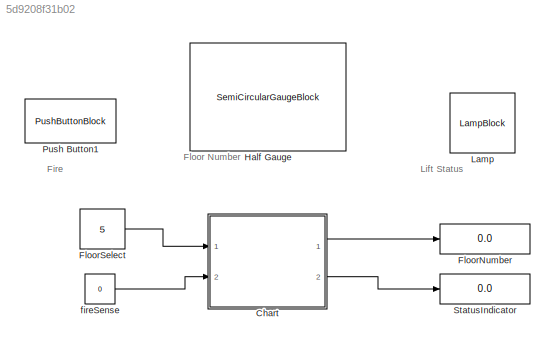
MODEL slx_5d9208f31b02
KIND model
CONFIG AbsTol = auto
CONFIG EnableMultiTasking = off
CONFIG FixedStep = auto
CONFIG MaxStep = auto
CONFIG MinStep = auto
CONFIG RelTol = 1e-3
CONFIG SampleTimeConstraint = Unconstrained
CONFIG SolverName = VariableStepAuto
CONFIG StartTime = 0.0
CONFIG StopTime = inf
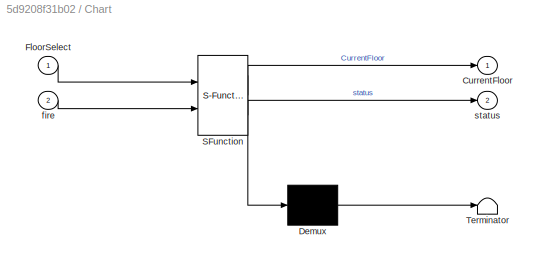
BLOCK [SubSystem] Chart
  ErrorFcn = Stateflow.Translate.translate
  PermitHierarchicalResolution = ExplicitOnly
  Ports = [2, 2]
  RequestExecContextInheritance = off
  SFBlockType = Chart
  TreatAsAtomicUnit = on
BLOCK [Demux] Chart/ Demux 
  Outputs = 1
  Ports = [1, 1]
BLOCK [S-Function] Chart/ SFunction 
  EnableBusSupport = on
  FunctionName = sf_sfun
  PortCounts = [2 3]
  Ports = [2, 3]
  SFcnIsStateOwnerBlock = off
  SFunctionDeploymentMode = off
  Tag = Stateflow S-Function 3
BLOCK [Terminator] Chart/ Terminator 
BLOCK [Outport] Chart/CurrentFloor
BLOCK [Inport] Chart/FloorSelect
BLOCK [Inport] Chart/fire
  Port = 2
BLOCK [Outport] Chart/status
  Port = 2
BLOCK [Display] FloorNumber
  Decimation = 1
  Ports = [1]
BLOCK [Constant] FloorSelect
  Value = 5
BLOCK [SemiCircularGaugeBlock] Half Gauge
  ScaleMax = 5
  TickInterval = 1
BLOCK [LampBlock] Lamp
BLOCK [PushButtonBlock] Push Button1
  ButtonText = Fire
BLOCK [Display] StatusIndicator
  Decimation = 1
  Ports = [1]
BLOCK [Constant] fireSense
  Value = 0
ANNOTATION (root): Fire
ANNOTATION (root): Floor Number
ANNOTATION (root): Lift Status
LINE Chart:1 -> FloorNumber:1
LINE Chart:2 -> StatusIndicator:1
LINE FloorSelect:1 -> Chart:1
LINE fireSense:1 -> Chart:2
CHART Chart states=12 transitions=29
  STATE_LABEL 'LiftOperation\nentry:\nstatus=0;'
  STATE_LABEL 'LiftFunctionOn'
  STATE_LABEL 'GroundFloor\nentry:\nstatus=1;\nduring:\nCurrentFloor=0;\nFloorCheck(CurrentFloor);\nexit:\nstatus=0;\n'
  STATE_LABEL 'FirstFloor\nentry:\nstatus=1;\nduring:\nCurrentFloor=1;\nFloorCheck(CurrentFloor);\nexit:\nstatus=0;\n'
  STATE_LABEL 'SecondFloor\nentry:\nstatus=1;\nduring:\nCurrentFloor=2;\nFloorCheck(CurrentFloor);\nexit:\nstatus=0;\nafter(1,sec);\n'
  STATE_LABEL 'ThirdFloor\nentry:\nstatus=1;\nduring:\nCurrentFloor=3;\nFloorCheck(CurrentFloor);\nexit:\nstatus=0;\nafter(1,sec);'
  STATE_LABEL 'FourthFloor\nentry:\nstatus=1\nduring:\nCurrentFloor=4;\nFloorCheck(CurrentFloor);\nexit:\nstatus=0;\n'
  STATE_LABEL 'FifthFloor\nentry:\nstatus=1;\nduring:\nCurrentFloor=5;\nFloorCheck(CurrentFloor);\nexit:\nstatus=0;\n'
  STATE_LABEL 'up'
  STATE_LABEL 'down'
  STATE_LABEL 'up'
  STATE_LABEL 'down'
  STATE_LABEL 'up'
  STATE_LABEL 'down'
  STATE_LABEL 'up'
  STATE_LABEL 'down'
  STATE_LABEL 'up'
  STATE_LABEL 'down'
  STATE_LABEL 'H'
  STATE_LABEL 'LiftFunctionOff\nen:\nstatus=0;'
  STATE_LABEL '[signal==0]'
  STATE_LABEL '[signal==1]'
  STATE_LABEL 'LiftFunctionOn'
  STATE_LABEL 'GroundFloor\nentry:\nstatus=1;\nduring:\nCurrentFloor=0;\nFloorCheck(CurrentFloor);\nexit:\nstatus=0;\n'
  STATE_LABEL 'FirstFloor\nentry:\nstatus=1;\nduring:\nCurrentFloor=1;\nFloorCheck(CurrentFloor);\nexit:\nstatus=0;\n'
  STATE_LABEL 'SecondFloor\nentry:\nstatus=1;\nduring:\nCurrentFloor=2;\nFloorCheck(CurrentFloor);\nexit:\nstatus=0;\nafter(1,sec);\n'
  STATE_LABEL 'ThirdFloor\nentry:\nstatus=1;\nduring:\nCurrentFloor=3;\nFloorCheck(CurrentFloor);\nexit:\nstatus=0;\nafter(1,sec);'
  STATE_LABEL 'FourthFloor\nentry:\nstatus=1\nduring:\nCurrentFloor=4;\nFloorCheck(CurrentFloor);\nexit:\nstatus=0;\n'
  STATE_LABEL 'FifthFloor\nentry:\nstatus=1;\nduring:\nCurrentFloor=5;\nFloorCheck(CurrentFloor);\nexit:\nstatus=0;\n'
  STATE_LABEL 'up'
  STATE_LABEL 'down'
  STATE_LABEL 'up'
  STATE_LABEL 'down'
  STATE_LABEL 'up'
  STATE_LABEL 'down'
  STATE_LABEL 'up'
  STATE_LABEL 'down'
  STATE_LABEL 'up'
  STATE_LABEL 'down'
  STATE_LABEL 'H'
CHART  states=0 transitions=0
